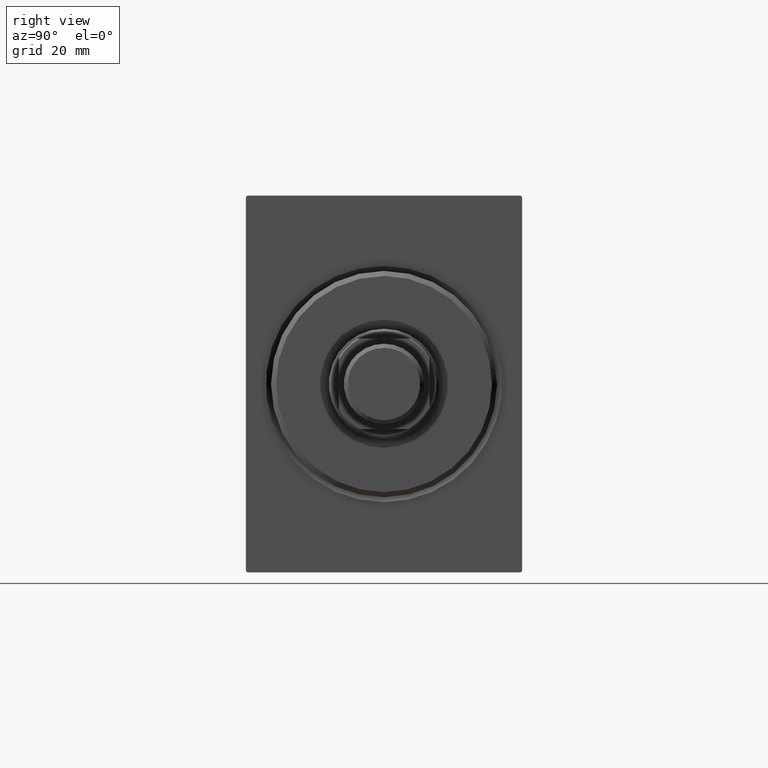
[diagram: clean part render]
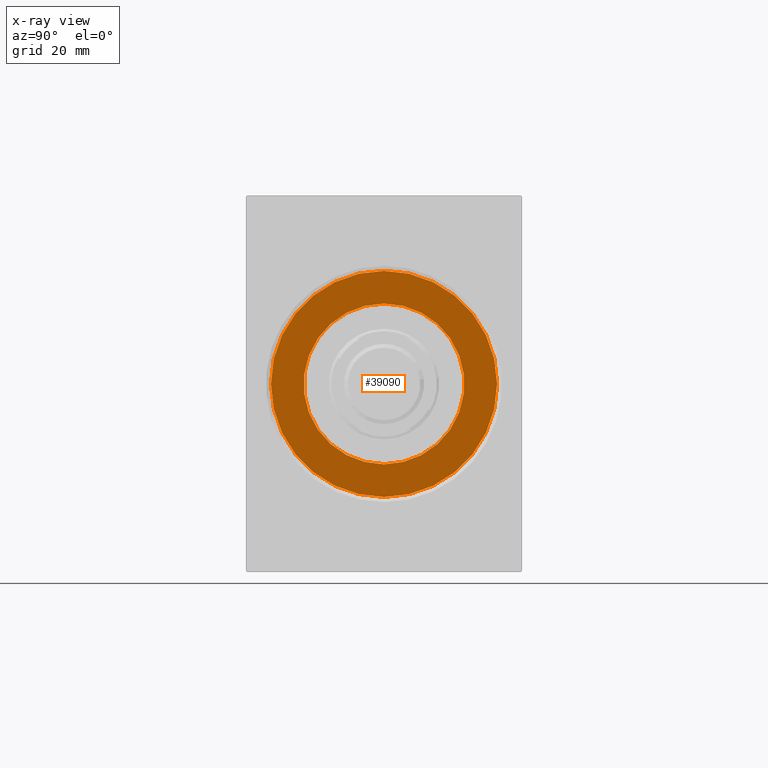
[diagram: x-ray — body ghosted, one internal face saturated and labeled with its STEP entity id]
A machine part, right view, then the same camera in x-ray: the body is ghosted and one INTERNAL B-rep face — a face not visible from any outside direction — is saturated and labeled: STEP entity #39090.
In plain terms, the highlighted planar face has unit normal (1, 0, -0).
Its self-contained STEP definition (entity closure, byte-faithful):
#1014 = CARTESIAN_POINT ( 'NONE',  ( 5.000000000000000000, 0.000000000000000000, 0.000000000000000000 ) ) ;
#2178 = FACE_OUTER_BOUND ( 'NONE', #34635, .T. ) ;
#2639 = DIRECTION ( 'NONE',  ( -1.000000000000000000, 0.000000000000000000, 0.000000000000000000 ) ) ;
#3197 = DIRECTION ( 'NONE',  ( -1.000000000000000000, 0.000000000000000000, 0.000000000000000000 ) ) ;
#4530 = EDGE_LOOP ( 'NONE', ( #33782, #35941 ) ) ;
#4791 = DIRECTION ( 'NONE',  ( 0.000000000000000000, 0.000000000000000000, 1.000000000000000000 ) ) ;
#6852 = CIRCLE ( 'NONE', #15131, 16.00000000000000000 ) ;
#7846 = PLANE ( 'NONE',  #8934 ) ;
#8286 = CIRCLE ( 'NONE', #31835, 22.50000000000000355 ) ;
#8934 = AXIS2_PLACEMENT_3D ( 'NONE', #37992, #14993, #4791 ) ;
#9141 = CARTESIAN_POINT ( 'NONE',  ( 4.999999999999997335, 0.000000000000000000, 16.00000000000000000 ) ) ;
#10134 = VERTEX_POINT ( 'NONE', #9141 ) ;
#11468 = VERTEX_POINT ( 'NONE', #32410 ) ;
#12536 = CARTESIAN_POINT ( 'NONE',  ( 4.999999999999997335, 0.000000000000000000, 0.000000000000000000 ) ) ;
#14051 = DIRECTION ( 'NONE',  ( 0.000000000000000000, 0.000000000000000000, 1.000000000000000000 ) ) ;
#14257 = DIRECTION ( 'NONE',  ( -1.000000000000000000, 0.000000000000000000, 0.000000000000000000 ) ) ;
#14993 = DIRECTION ( 'NONE',  ( -1.000000000000000000, 0.000000000000000000, 0.000000000000000000 ) ) ;
#15131 = AXIS2_PLACEMENT_3D ( 'NONE', #17803, #41013, #18014 ) ;
#16576 = AXIS2_PLACEMENT_3D ( 'NONE', #1014, #14257, #14051 ) ;
#17464 = VERTEX_POINT ( 'NONE', #21231 ) ;
#17803 = CARTESIAN_POINT ( 'NONE',  ( 4.999999999999997335, 0.000000000000000000, 0.000000000000000000 ) ) ;
#18014 = DIRECTION ( 'NONE',  ( 0.000000000000000000, 0.000000000000000000, 1.000000000000000000 ) ) ;
#21231 = CARTESIAN_POINT ( 'NONE',  ( 5.000000000000000000, 0.000000000000000000, 22.50000000000000355 ) ) ;
#21341 = CIRCLE ( 'NONE', #35869, 16.00000000000000000 ) ;
#23389 = ORIENTED_EDGE ( 'NONE', *, *, #36733, .T. ) ;
#24767 = FACE_BOUND ( 'NONE', #4530, .T. ) ;
#26211 = DIRECTION ( 'NONE',  ( 0.000000000000000000, 0.000000000000000000, 1.000000000000000000 ) ) ;
#28919 = CARTESIAN_POINT ( 'NONE',  ( 5.000000000000000000, 0.000000000000000000, 0.000000000000000000 ) ) ;
#30272 = CARTESIAN_POINT ( 'NONE',  ( 5.000000000000000000, 2.755455298081545172E-15, -22.50000000000000355 ) ) ;
#31033 = EDGE_CURVE ( 'NONE', #11468, #10134, #21341, .T. ) ;
#31835 = AXIS2_PLACEMENT_3D ( 'NONE', #28919, #2639, #32820 ) ;
#32410 = CARTESIAN_POINT ( 'NONE',  ( 4.999999999999997335, 1.959434878635765131E-15, -16.00000000000000000 ) ) ;
#32820 = DIRECTION ( 'NONE',  ( 0.000000000000000000, 0.000000000000000000, 1.000000000000000000 ) ) ;
#33536 = EDGE_CURVE ( 'NONE', #10134, #11468, #6852, .T. ) ;
#33782 = ORIENTED_EDGE ( 'NONE', *, *, #33536, .F. ) ;
#34236 = VERTEX_POINT ( 'NONE', #30272 ) ;
#34553 = EDGE_CURVE ( 'NONE', #34236, #17464, #40148, .T. ) ;
#34635 = EDGE_LOOP ( 'NONE', ( #23389, #39932 ) ) ;
#35869 = AXIS2_PLACEMENT_3D ( 'NONE', #12536, #3197, #26211 ) ;
#35941 = ORIENTED_EDGE ( 'NONE', *, *, #31033, .F. ) ;
#36733 = EDGE_CURVE ( 'NONE', #17464, #34236, #8286, .T. ) ;
#37992 = CARTESIAN_POINT ( 'NONE',  ( 5.000000000000000000, 0.000000000000000000, 0.000000000000000000 ) ) ;
#39090 = ADVANCED_FACE ( 'NONE', ( #24767, #2178 ), #7846, .T. ) ;
#39932 = ORIENTED_EDGE ( 'NONE', *, *, #34553, .T. ) ;
#40148 = CIRCLE ( 'NONE', #16576, 22.50000000000000355 ) ;
#41013 = DIRECTION ( 'NONE',  ( -1.000000000000000000, 0.000000000000000000, 0.000000000000000000 ) ) ;